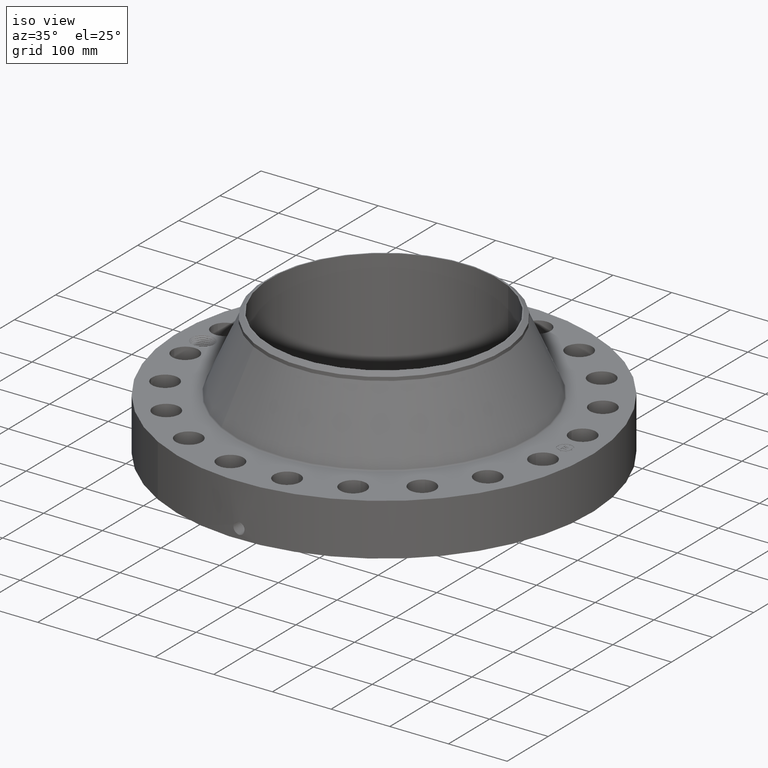
[diagram: clean part render]
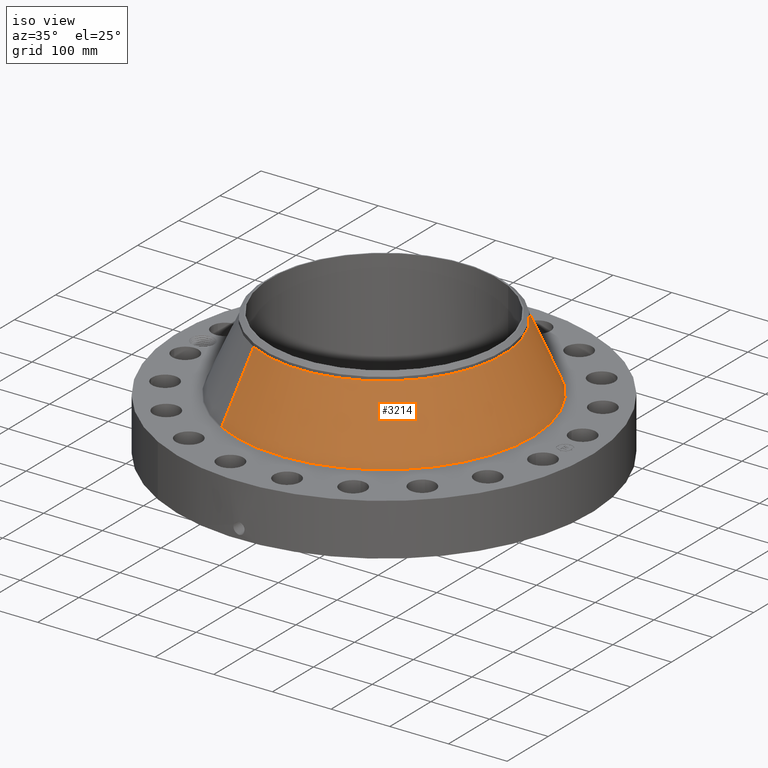
[diagram: same view with one face highlighted and labeled with its STEP entity id]
A machine part, iso view. The second image highlights one B-rep face of the part: STEP entity #3214.
In plain terms, the highlighted conical surface has half-angle 23.791 deg.
Its self-contained STEP definition (entity closure, byte-faithful):
#2575=AXIS2_PLACEMENT_3D('Circle Axis2P3D',#2573,#2574,$) ;
#3187=AXIS2_PLACEMENT_3D('Cone Axis2P3D',#3184,#3185,#3186) ;
#3198=AXIS2_PLACEMENT_3D('Circle Axis2P3D',#3196,#3197,$) ;
#2570=CARTESIAN_POINT('Vertex',(4.77912348056,8.74812685172,3.82159104771)) ;
#2573=CARTESIAN_POINT('Axis2P3D Location',(0.,0.,3.82159104771)) ;
#2577=CARTESIAN_POINT('Vertex',(-4.77912348056,-8.74812685172,3.82159104771)) ;
#3184=CARTESIAN_POINT('Axis2P3D Location',(0.,0.,8.28645135497)) ;
#3189=CARTESIAN_POINT('Line Origine',(4.30726389471,7.88439367344,6.05402120134)) ;
#3193=CARTESIAN_POINT('Vertex',(3.83540430885,7.02066049515,8.28645135497)) ;
#3196=CARTESIAN_POINT('Axis2P3D Location',(0.,0.,8.28645135497)) ;
#3200=CARTESIAN_POINT('Vertex',(-3.83540430885,-7.02066049515,8.28645135497)) ;
#3203=CARTESIAN_POINT('Line Origine',(-4.30726389471,-7.88439367344,6.05402120134)) ;
#2574=DIRECTION('Axis2P3D Direction',(0.,0.,-0.0393700787402)) ;
#3185=DIRECTION('Axis2P3D Direction',(0.,0.,-0.0393700787402)) ;
#3186=DIRECTION('Axis2P3D XDirection',(-0.0188750212049,-0.0345504945626,0.)) ;
#3190=DIRECTION('Vector Direction',(0.00761433334439,0.0139379436959,-0.0360244188469)) ;
#3197=DIRECTION('Axis2P3D Direction',(0.,0.,-0.0393700787402)) ;
#3204=DIRECTION('Vector Direction',(-0.00761433334439,-0.0139379436959,-0.0360244188469)) ;
#3191=VECTOR('Line Direction',#3190,0.0393700787402) ;
#3205=VECTOR('Line Direction',#3204,0.0393700787402) ;
#3209=ORIENTED_EDGE('',*,*,#2579,.F.) ;
#3210=ORIENTED_EDGE('',*,*,#3195,.T.) ;
#3211=ORIENTED_EDGE('',*,*,#3202,.T.) ;
#3212=ORIENTED_EDGE('',*,*,#3207,.F.) ;
#3214=ADVANCED_FACE('PartBody',(#3213),#3188,.T.) ;
#2576=CIRCLE('generated circle',#2575,9.968437423) ;
#3199=CIRCLE('generated circle',#3198,8.00000000003) ;
#3188=CONICAL_SURFACE('Cone',#3187,8.00000000003,0.415238239617) ;
#2579=EDGE_CURVE('',#2571,#2578,#2576,.T.) ;
#3195=EDGE_CURVE('',#2571,#3194,#3192,.F.) ;
#3202=EDGE_CURVE('',#3194,#3201,#3199,.T.) ;
#3207=EDGE_CURVE('',#2578,#3201,#3206,.F.) ;
#3208=EDGE_LOOP('',(#3209,#3210,#3211,#3212)) ;
#3213=FACE_OUTER_BOUND('',#3208,.T.) ;
#3192=LINE('Line',#3189,#3191) ;
#3206=LINE('Line',#3203,#3205) ;
#2571=VERTEX_POINT('',#2570) ;
#2578=VERTEX_POINT('',#2577) ;
#3194=VERTEX_POINT('',#3193) ;
#3201=VERTEX_POINT('',#3200) ;